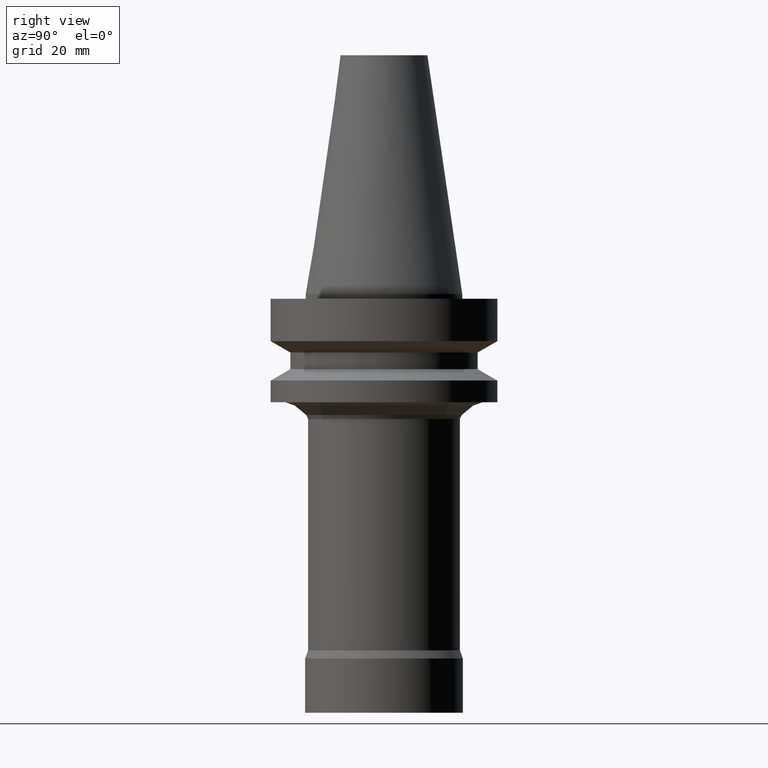
[diagram: clean part render]
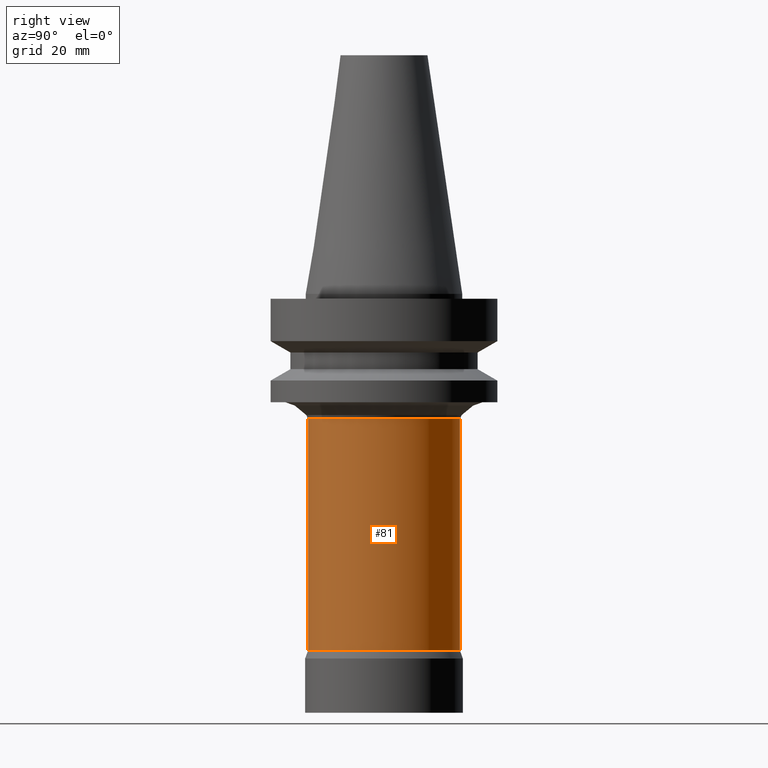
[diagram: same view with one face highlighted and labeled with its STEP entity id]
A machine part, right view. The second image highlights one B-rep face of the part: STEP entity #81.
In plain terms, the highlighted cylindrical surface (bore or boss wall) has radius 15.4 mm, axis along (-0, -0, 1).
Its self-contained STEP definition (entity closure, byte-faithful):
#81=ADVANCED_FACE('',(#111,#112),#113,.T.);
#111=FACE_BOUND('',#160,.T.);
#112=FACE_BOUND('',#161,.T.);
#113=CYLINDRICAL_SURFACE('',#162,15.4);
#160=EDGE_LOOP('',(#221));
#161=EDGE_LOOP('',(#222));
#162=AXIS2_PLACEMENT_3D('',#223,#224,#225);
#221=ORIENTED_EDGE('',*,*,#281,.F.);
#222=ORIENTED_EDGE('',*,*,#280,.T.);
#223=CARTESIAN_POINT('',(2.99198871856835E-015,5.98397743713669E-015,-48.862883905));
#224=DIRECTION('',(-6.12323399573677E-017,-1.22464679914735E-016,1.0));
#225=DIRECTION('',(-1.23259516440783E-032,1.0,1.22464679914735E-016));
#280=EDGE_CURVE('',#302,#302,#303,.T.);
#281=EDGE_CURVE('',#304,#304,#305,.T.);
#302=VERTEX_POINT('',#334);
#303=CIRCLE('',#335,15.4);
#304=VERTEX_POINT('',#336);
#305=CIRCLE('',#337,15.4);
#334=CARTESIAN_POINT('',(1.55359782814252E-015,15.4,-25.37217799));
#335=AXIS2_PLACEMENT_3D('',#372,#373,#374);
#336=CARTESIAN_POINT('',(4.43037960899417E-015,15.4,-72.35358982));
#337=AXIS2_PLACEMENT_3D('',#375,#376,#377);
#372=CARTESIAN_POINT('',(1.55359782814252E-015,3.10719565628504E-015,-25.37217799));
#373=DIRECTION('',(6.12323399573677E-017,1.22464679914735E-016,-1.0));
#374=DIRECTION('',(-1.23259516440783E-032,1.0,1.22464679914735E-016));
#375=CARTESIAN_POINT('',(4.43037960899417E-015,8.86075921798835E-015,-72.35358982));
#376=DIRECTION('',(6.12323399573677E-017,1.22464679914735E-016,-1.0));
#377=DIRECTION('',(-1.23259516440783E-032,1.0,1.22464679914735E-016));